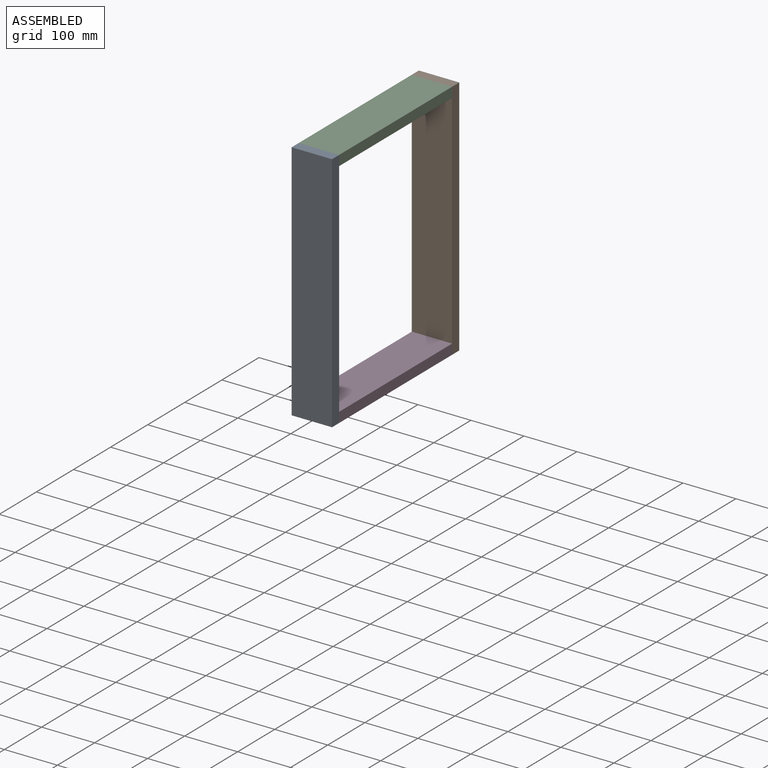
[diagram: assembled view]
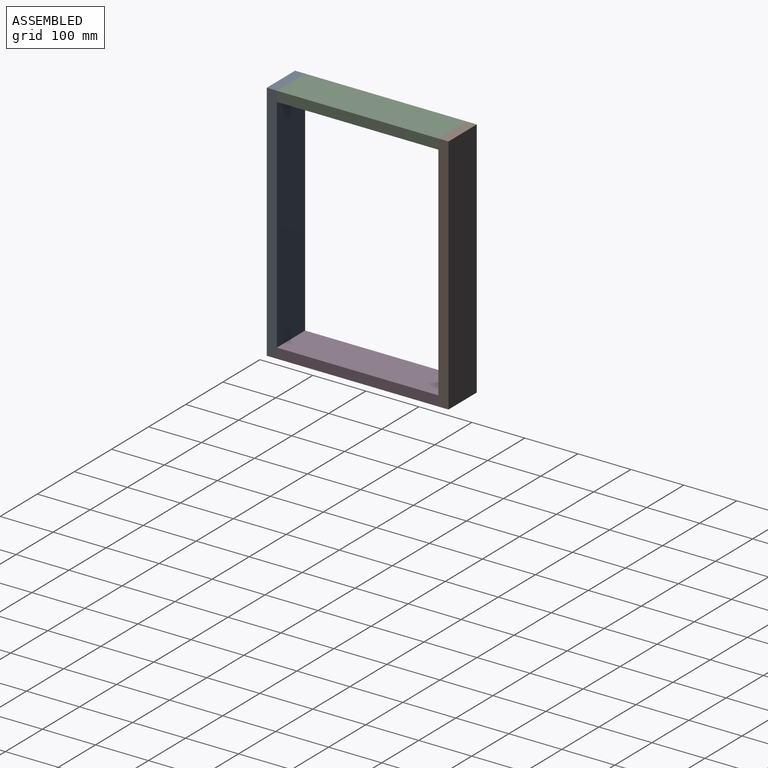
[diagram: assembled view, second angle]
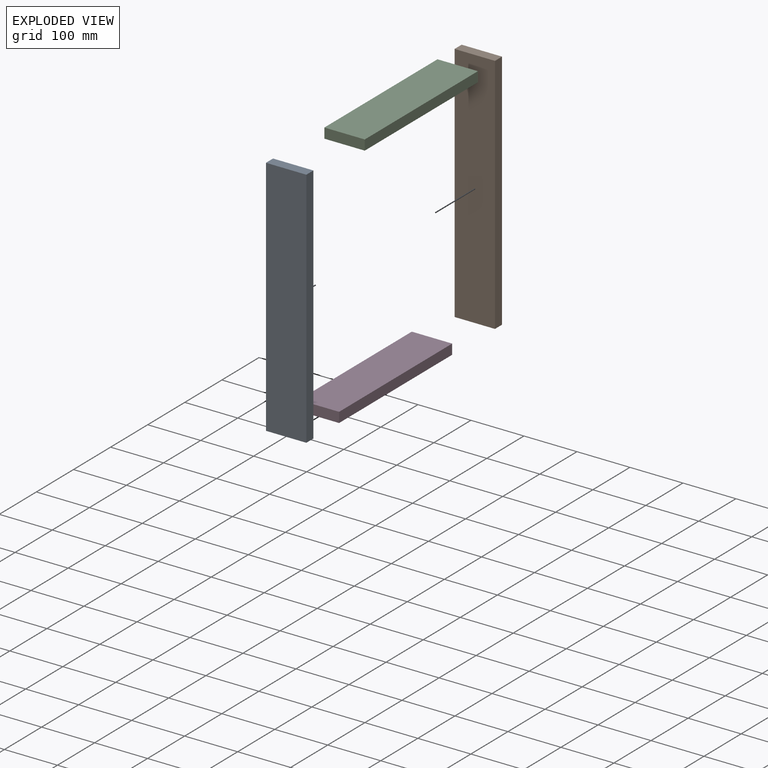
[diagram: exploded view]
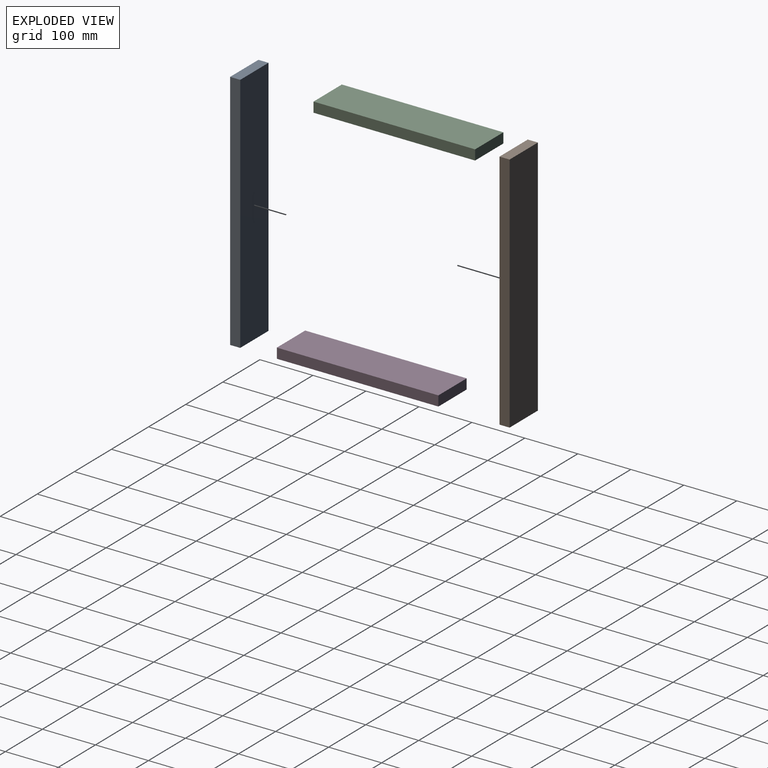
[diagram: exploded view, second angle]
ASSEMBLY  parts=4 mates=3
PART A: 6 faces, bbox 76.2x19.1x457.2 mm
  f0: plane 457.2x19.05mm, normal (-1,0,0), area 8709.7mm2, adj f1,f3,f4,f5
  f1: plane 457.2x76.2mm, normal (0,-1,0), area 34838.6mm2, adj f0,f2,f4,f5
  f2: plane 457.2x19.05mm, normal (1,0,0), area 8709.7mm2, adj f1,f3,f4,f5
  f3: plane 457.2x76.2mm, normal (0,1,0), area 34838.6mm2, adj f0,f2,f4,f5
  f4: plane 76.2x19.05mm, normal (0,0,1), area 1451.6mm2, adj f0,f1,f2,f3
  f5: plane 76.2x19.05mm, normal (0,0,-1), area 1451.6mm2, adj f0,f1,f2,f3
PART B: same geometry as A
PART C: 6 faces, bbox 76.2x19.1x304.8 mm
  f0: plane 304.8x19.05mm, normal (-1,0,0), area 5806.4mm2, adj f1,f3,f4,f5
  f1: plane 304.8x76.2mm, normal (0,-1,0), area 23225.8mm2, adj f0,f2,f4,f5
  f2: plane 304.8x19.05mm, normal (1,0,0), area 5806.4mm2, adj f1,f3,f4,f5
  f3: plane 304.8x76.2mm, normal (0,1,0), area 23225.8mm2, adj f0,f2,f4,f5
  f4: plane 76.2x19.05mm, normal (0,0,1), area 1451.6mm2, adj f0,f1,f2,f3
  f5: plane 76.2x19.05mm, normal (0,0,-1), area 1451.6mm2, adj f0,f1,f2,f3
PART D: same geometry as C
PLACE A at identity fixed
PLACE B t=(0,323.85,0)mm
PLACE C rot(axis=(1,0,0),90deg) t=(-38.1,323.85,400.48)mm
PLACE D rot(axis=(-1,0,0),90deg) t=(-38.1,19.05,56.72)mm
MATE fastened A.f3 <-> C.f4  axis (0,1,0) through (0,19.05,457.2)mm
MATE fastened B.f5 <-> D.f3  axis (0,0,-1) through (0,323.85,0)mm
MATE fastened D.f5 <-> A.f3  axis (0,-1,0) through (0,19.05,0)mm
